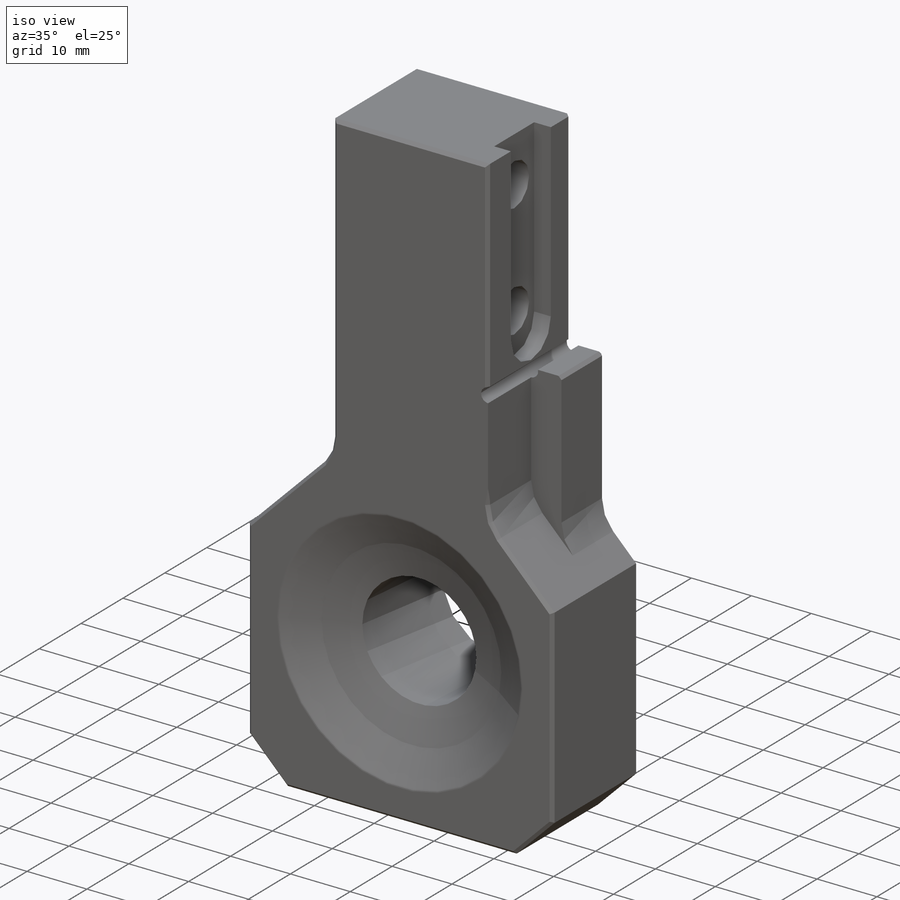
[diagram: iso view]
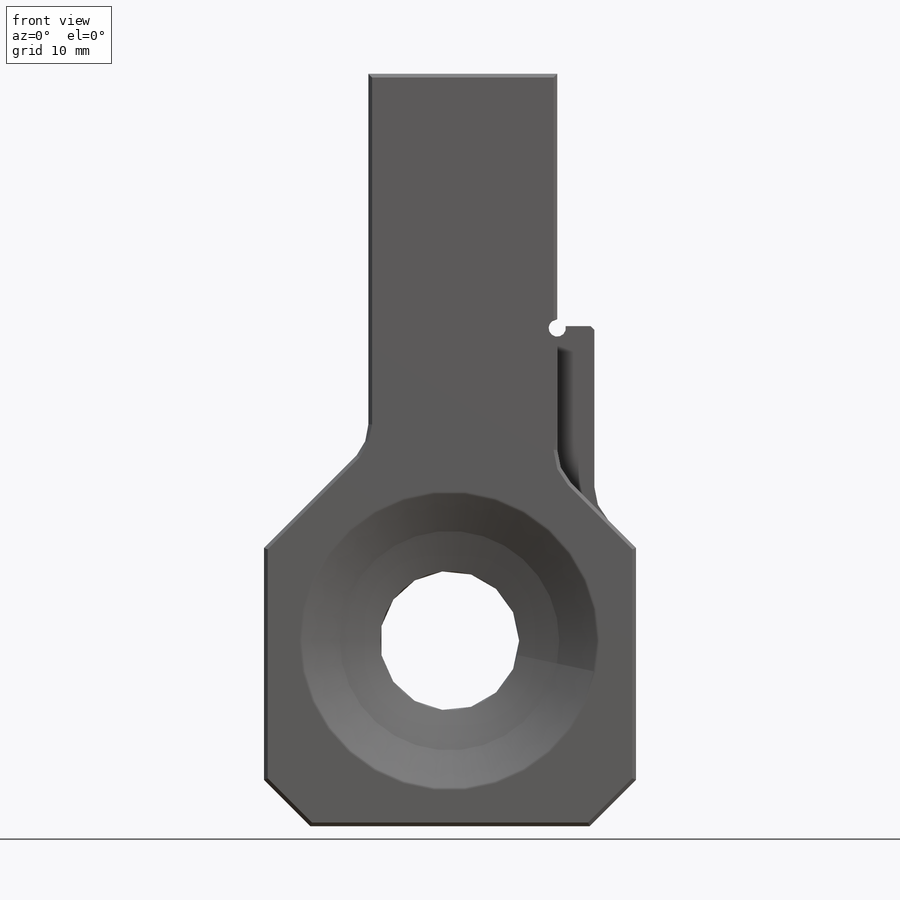
[diagram: front view]
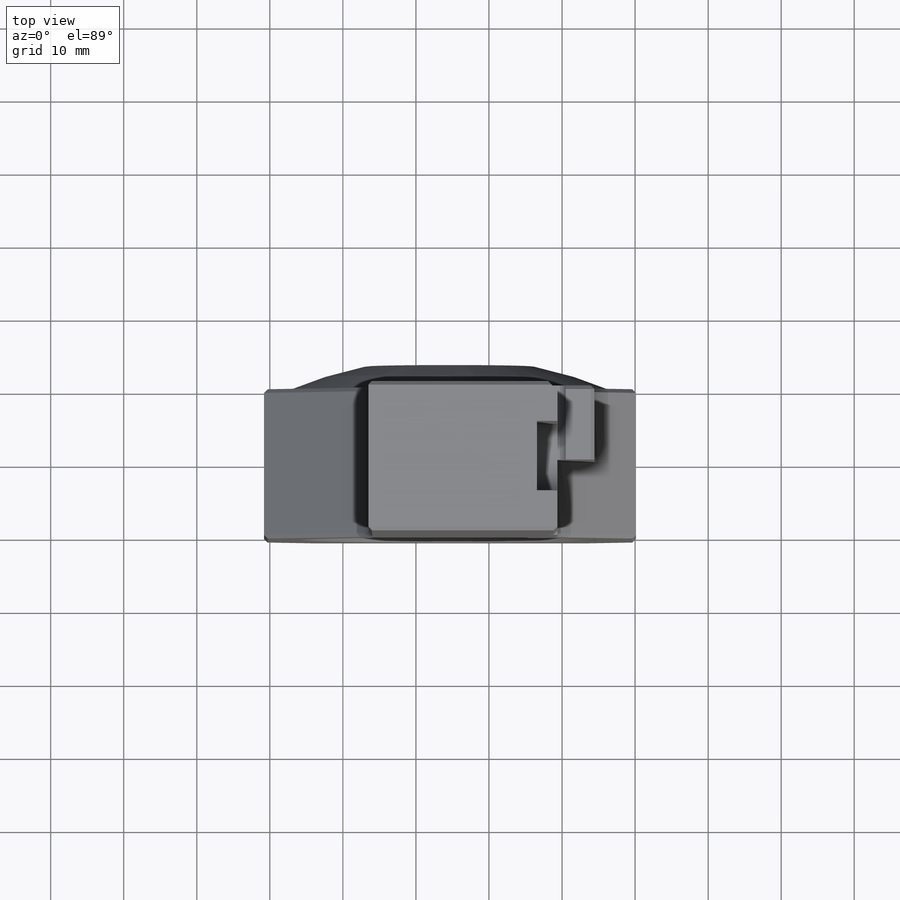
[diagram: top view]
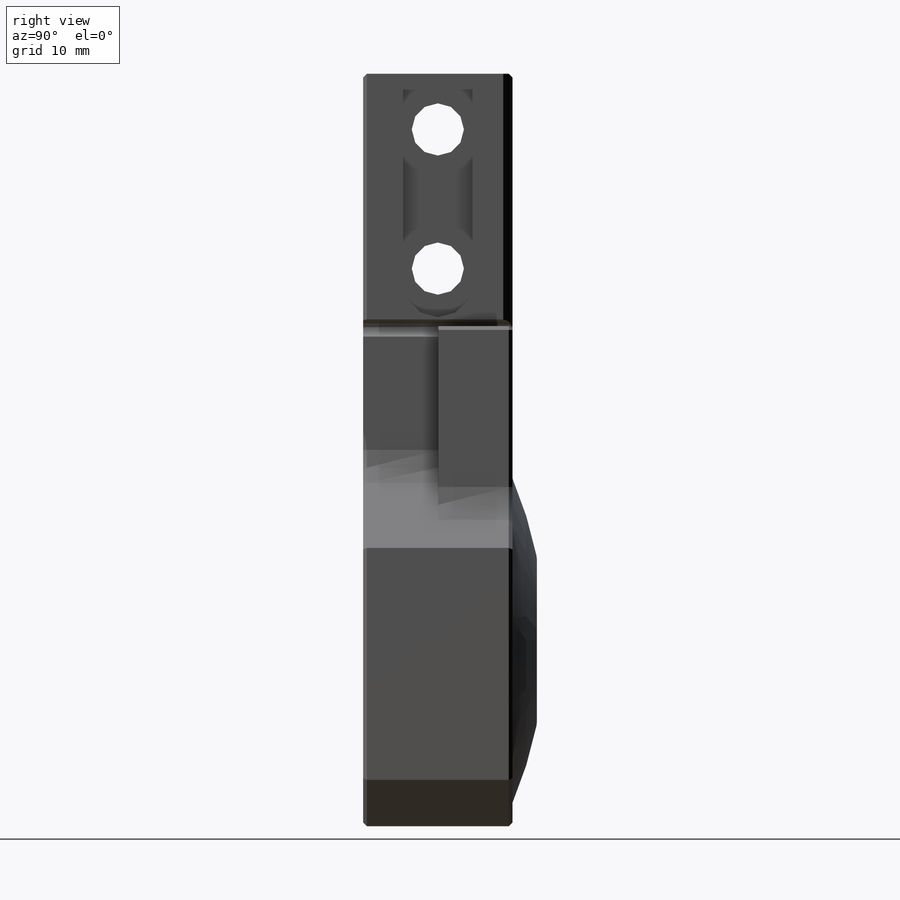
[diagram: right view]
SOLIDWORKS PART (.sldprt)
format: sldprt  version: not decoded by parser v0  size: 740,352 bytes
history: native  units: mm
features: extrude x16, sketch x11, chamfer x5, plane x4, cut_extrude x4, fillet x3, material x1, cut_revolve x1, hole x1 (+11 scaffold rows collapsed)
feature tree (57):
  scaffold x11  (default folders/planes/origin — collapsed)
  material  "6061-T6 Al"
  plane  "XY"
  plane  "XZ"
  plane  "YZ"
  sketch  "Sketch1"  dims[D1=50.8mm D2=0.127mm]
  extrude  "Extrude1"  Depth=20.447mm ID=164619364
  extrude  "ID"  [1 undecoded]
  extrude  "faceID"  Depth=0 cosFaceIDTag=0
  extrude  "faceID"  [1 undecoded]
  extrude  "faceID"  [1 undecoded]
  extrude  "faceID"  [1 undecoded]
  extrude  "faceID"  [1 undecoded]
  extrude  "faceID"  [1 undecoded]
  extrude  "faceID"  [1 undecoded]
  extrude  "faceID"  [1 undecoded]
  extrude  "faceID"  [1 undecoded]
  extrude  "faceID"  [1 undecoded]
  extrude  "faceID"  [1 undecoded]
  sketch  "Sketch60"  dims[D1=50.8mm D2=25.4mm D3=4.953mm D4=25.4mm]
  extrude  "Extrude6"  Depth=50.8mm
  plane  "Plane1"
  sketch  "Sketch64"  dims[c1.D1=38.1mm c1.D4=~130.702129mm c1.D5=~114.322858mm c1.D8=38.1mm c1.D2=20.32mm c1.D3=~6.888805mm c2.D1=38.1mm c2.D3=32.2326mm c2.D2=20.32mm c3.D3=11.43mm c3.D4=17.907mm c3.D5=22.225mm c3.D6=25.4mm c3.D7=~1.621987mm]
  cut_revolve  "Cut-Revolve1"  Angle=360deg
  sketch  "Sketch69"  dims[D3=44.45mm D1=63.5mm D2=63.5mm D4=25.4mm D5=25.4mm]
  cut_extrude  "Cut-Extrude23"  Depth=4.953mm
  sketch  "Sketch71"  dims[c1.D1=19.05mm c1.D2=19.05mm c1.D3=19.05mm c2.D2=25.4mm c2.D3=25.4mm]
  cut_extrude  "Cut-Extrude24"  [1 undecoded]
  sketch  "Sketch75"  dims[c1.D1=20.447mm c1.D2=~17.739129mm c2.D1=25.4mm c2.D2=10.7823mm c3.D1=14.2875mm]
  extrude  "Extrude8"  Depth=52.197mm
  hole  "1/4 Clearance Hole1"  Diameter=7.14248mm Depth=36.639525mm
  sketch  "Sketch73"  dims[c1.D1=19.05mm c1.D2=35.56mm c1.D3=10.2235mm c2.D2=50.8mm c2.D4=40.64mm c2.D5=10.2235mm c3.D4=~10.127254mm c3.D5=15.24mm c4.D4=~10.127254mm c4.D5=10.2235mm c4.D2=7.747mm c4.D1=7.62mm c5.D2=10.2235mm c5.D3=19.05mm]
  sketch  "Sketch72"  dims[hole-wizard template sketch: 54 standard entries collapsed; hole parameters kept: c17.Thru Hole Dia.=~7.14248mm c17.Thru Hole Depth=~36.639525mm c17.Near C'Sink Dia.=~8.41248mm c17.D4=~3.666174mm c17.Near C'Sink Angle=90.0deg]
  chamfer  "Chamfer1"  Distance=6.35mm Angle=45deg
  sketch  "Sketch77"  dims[D1=34.544mm D2=10.16mm]
  extrude  "Extrude10"  Depth=5.08mm
  sketch  "Sketch76"  dims[c1.D3=9.525mm c1.D1=~44.211084mm c1.D2=~9.468119mm c2.D1=9.525mm c2.D2=4.7625mm c2.D3=28.575mm]
  cut_extrude  "Extrude9"  Depth=7.874mm
  chamfer  "Chamfer2"  Distance=12.7mm Angle=45deg
  fillet  "Fillet7"  Radius=6.35mm
  chamfer  "Chamfer6"  Distance=1.27mm Angle=45deg
  sketch  "Sketch78"  dims[c1.D1=2.3622mm c1.D2=0.8382mm c1.D3=0.8382mm c2.D2=0.254mm]
  cut_extrude  "Extrude11"  [1 undecoded]
  fillet  "Fillet4"  Radius=2.54mm
  fillet  "Fillet5"  Radius=0.635mm
  chamfer  "Chamfer3"  Distance=0.508mm Angle=45deg
  chamfer  "Chamfer5"  Distance=0.508mm Angle=45deg
decode coverage: 28 of 41 modeling features carry decoded parameters
note: ~ marks probable driven/reference dimensions
note: 13 parameter values undecoded
summary: no parameter record found for 13 features
note: suppression state not decoded; provenance and decode notes live in map.json
